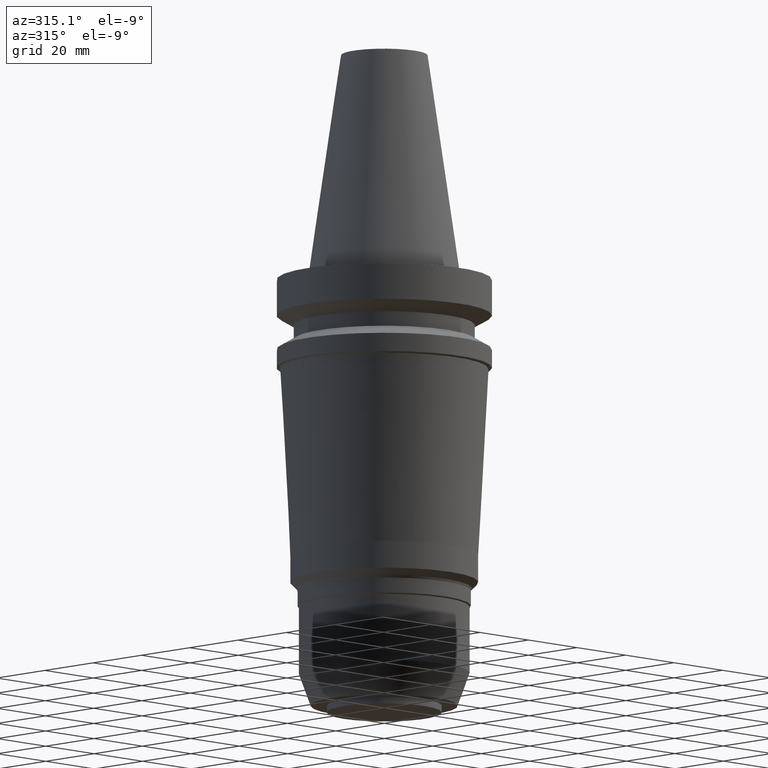
[diagram: clean part render]
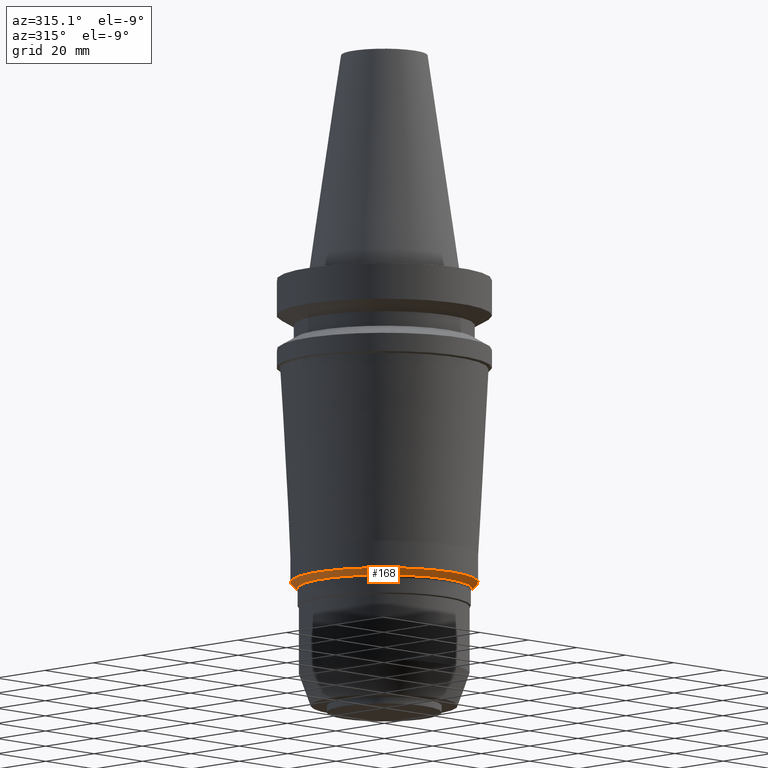
[diagram: same view with one face highlighted and labeled with its STEP entity id]
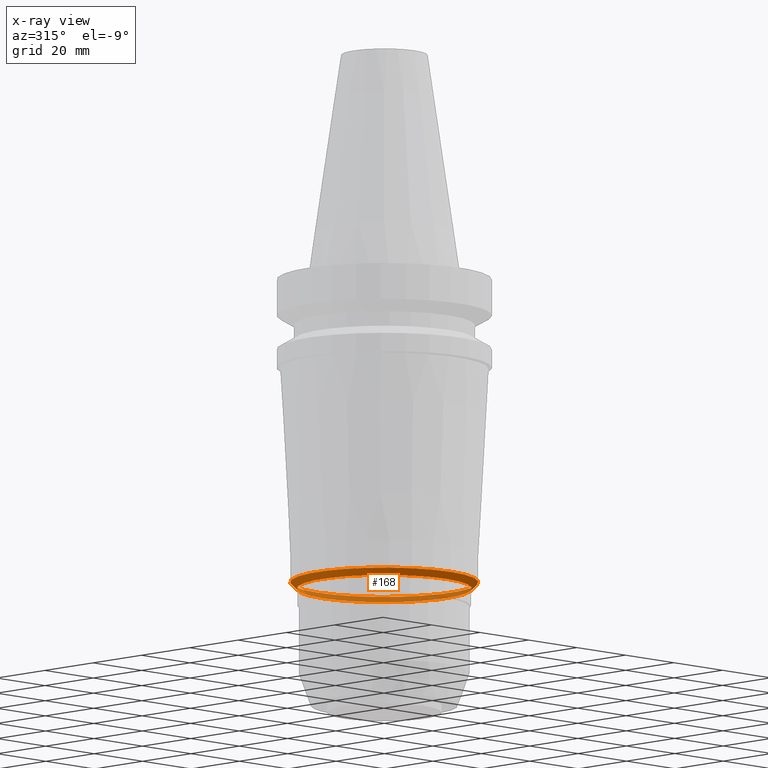
[diagram: x-ray of the same camera — body ghosted, the highlighted face saturated]
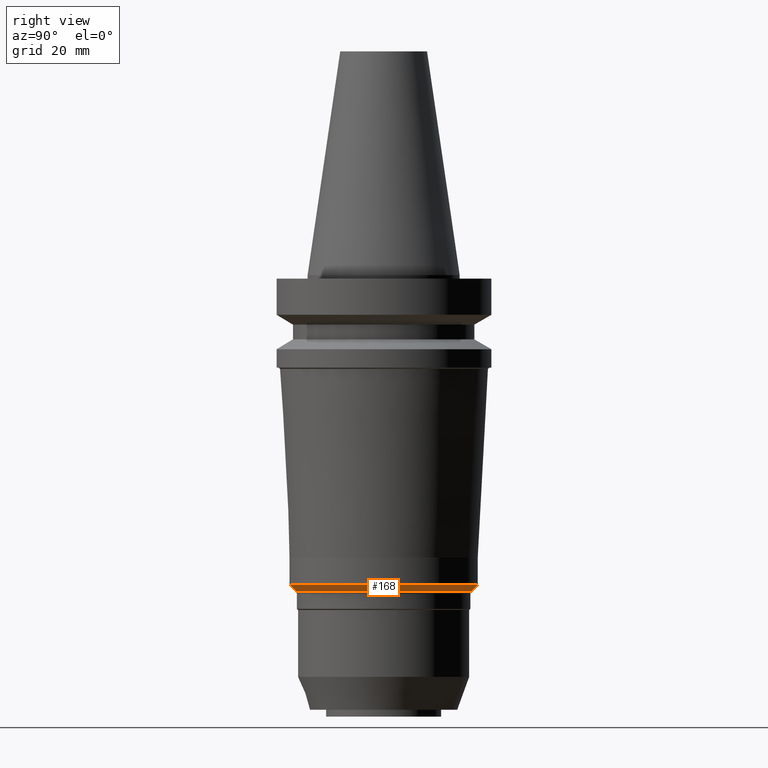
[diagram: same view with one face highlighted and labeled with its STEP entity id]
A machine part, auxiliary view. The second image highlights one B-rep face of the part: STEP entity #168.
The next image is the same camera in x-ray: the body ghosted, the highlighted face saturated — about 35% of this face is hidden behind the body in this view.
A second angle (right view) of the same face is appended — the face is thin or edge-on in the first view.
In plain terms, the highlighted conical surface has half-angle 45 deg.
Its self-contained STEP definition (entity closure, byte-faithful):
#68=EDGE_CURVE('Unnamed[1]',#195,#195,#196,.T.);
#134=EDGE_CURVE('Unnamed[1]',#298,#298,#299,.T.);
#168=ADVANCED_FACE('Unnamed[1]',(#351,#352),#353,.T.);
#195=VERTEX_POINT('',#376);
#196=CIRCLE('',#377,27.5000000000002);
#298=VERTEX_POINT('',#504);
#299=CIRCLE('',#505,25.6428932188132);
#351=FACE_BOUND('',#570,.T.);
#352=FACE_BOUND('',#571,.T.);
#353=CONICAL_SURFACE('',#572,26.5714466094067,0.785398163397467);
#376=CARTESIAN_POINT('',(5.54150700305324E-015,27.5000000000002,-90.4996772442708));
#377=AXIS2_PLACEMENT_3D('',#592,#593,#594);
#504=CARTESIAN_POINT('',(5.65522199681601E-015,25.6428932188133,-92.3567840254577));
#505=AXIS2_PLACEMENT_3D('',#706,#707,#708);
#570=EDGE_LOOP('',(#766));
#571=EDGE_LOOP('',(#767));
#572=AXIS2_PLACEMENT_3D('',#768,#769,#770);
#592=CARTESIAN_POINT('',(5.54150700305324E-015,6.55081700059888E-014,-90.4996772442708));
#593=DIRECTION('',(6.12323399573677E-017,-7.43161200359164E-017,-1.0));
#594=DIRECTION('',(-2.76602804412401E-034,1.0,-7.43161200359164E-017));
#706=CARTESIAN_POINT('',(5.65522199681601E-015,6.53701570355187E-014,-92.3567840254577));
#707=DIRECTION('',(6.12323399573677E-017,-7.43161200358464E-017,-1.0));
#708=DIRECTION('',(-2.76602804440986E-034,1.0,-7.43161200358464E-017));
#766=ORIENTED_EDGE('',*,*,#134,.F.);
#767=ORIENTED_EDGE('',*,*,#68,.T.);
#768=CARTESIAN_POINT('',(5.59836449993462E-015,6.54391635207538E-014,-91.4282306348642));
#769=DIRECTION('',(-6.12323399573677E-017,7.43161200357611E-017,1.0));
#770=DIRECTION('',(-2.76602804426194E-034,1.0,-7.43161200357611E-017));